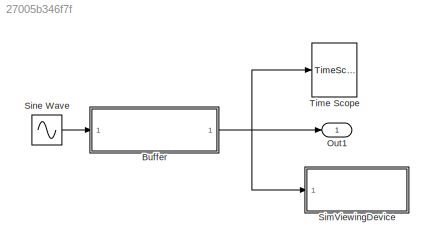
MODEL slx_27005b346f7f
KIND model
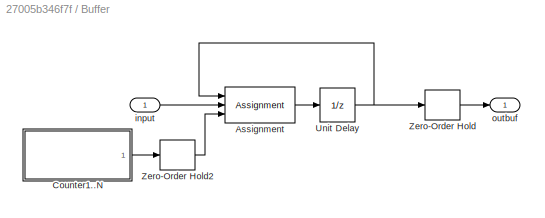
BLOCK [SubSystem] Buffer
  FunctionWithSeparateData = off
  MaskHideContents = off
  MinAlgLoopOccurrences = off
  Opaque = off
  Ports = [1, 1]
  PropExecContextOutsideSubsystem = off
  RTWSystemCode = Auto
  RequestExecContextInheritance = off
  TreatAsAtomicUnit = on
  Variant = off
BLOCK [Assignment] Buffer/Assignment
  IndexOptions = Index vector (port)
  Indices = 1
  OutputSizes = 100
  Ports = [3, 1]
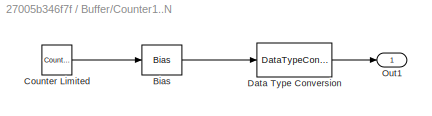
BLOCK [SubSystem] Buffer/Counter1..N
  FunctionWithSeparateData = off
  MaskHideContents = off
  MinAlgLoopOccurrences = off
  Opaque = off
  Ports = [0, 1]
  PropExecContextOutsideSubsystem = off
  RTWSystemCode = Auto
  RequestExecContextInheritance = off
  Variant = off
BLOCK [Bias] Buffer/Counter1..N/Bias
  Bias = 1
  SaturateOnIntegerOverflow = off
BLOCK [Reference] Buffer/Counter1..N/Counter Limited  REF=simulink/Sources/Counter
Limited
  Ports = [0, 1]
  SourceBlock = simulink/Sources/Counter\nLimited
  SourceType = Counter Limited
  tsamp = -1
  uplimit = BufSize-1
BLOCK [DataTypeConversion] Buffer/Counter1..N/Data Type Conversion
  RndMeth = Floor
  SaturateOnIntegerOverflow = off
BLOCK [Outport] Buffer/Counter1..N/Out1
  IconDisplay = Port number
BLOCK [UnitDelay] Buffer/Unit Delay
  InitialCondition = zeros(BufSize,1)
  InputProcessing = Elements as channels (sample based)
  SampleTime = Ts
BLOCK [ZeroOrderHold] Buffer/Zero-Order Hold
  SampleTime = BufSize*Ts
BLOCK [ZeroOrderHold] Buffer/Zero-Order Hold2
  SampleTime = Ts
BLOCK [Inport] Buffer/input
  IconDisplay = Port number
  SampleTime = Ts
BLOCK [Outport] Buffer/outbuf
  IconDisplay = Port number
BLOCK [Outport] Out1
  IconDisplay = Port number
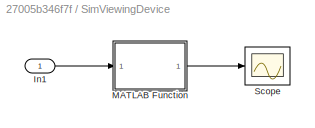
BLOCK [SubSystem] SimViewingDevice
  FunctionWithSeparateData = off
  MaskHideContents = off
  MinAlgLoopOccurrences = off
  Opaque = off
  Ports = [1]
  PropExecContextOutsideSubsystem = off
  RTWSystemCode = Auto
  RequestExecContextInheritance = off
  SimViewingDevice = on
  TreatAsAtomicUnit = on
  Variant = off
BLOCK [Inport] SimViewingDevice/In1
  IconDisplay = Port number
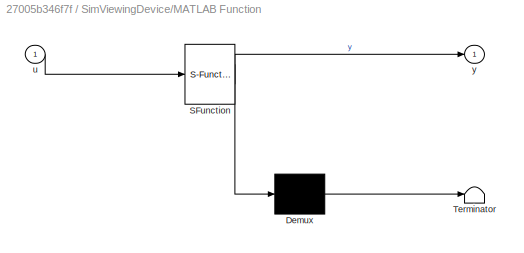
BLOCK [SubSystem] SimViewingDevice/MATLAB Function
  ErrorFcn = Stateflow.Translate.translate
  FunctionWithSeparateData = off
  MaskHideContents = off
  MinAlgLoopOccurrences = off
  Opaque = off
  PermitHierarchicalResolution = ParametersOnly
  Ports = [1, 1]
  PropExecContextOutsideSubsystem = off
  RTWSystemCode = Auto
  RequestExecContextInheritance = off
  SFBlockType = MATLAB Function
  TreatAsAtomicUnit = on
  Variant = off
BLOCK [Demux] SimViewingDevice/MATLAB Function/ Demux 
  Outputs = 1
  Ports = [1, 1]
BLOCK [S-Function] SimViewingDevice/MATLAB Function/ SFunction 
  EnableBusSupport = off
  FunctionName = sf_sfun
  PortCounts = [1 2]
  Ports = [1, 2]
  SFunctionDeploymentMode = off
  Tag = Stateflow S-Function mdaqdemo_extbuf_2013 2
BLOCK [Terminator] SimViewingDevice/MATLAB Function/ Terminator 
BLOCK [Inport] SimViewingDevice/MATLAB Function/u
  IconDisplay = Port number
BLOCK [Outport] SimViewingDevice/MATLAB Function/y
  IconDisplay = Port number
BLOCK [Scope] SimViewingDevice/Scope
  DataFormat = StructureWithTime
  Decimation = 1
  Grid = on
  LimitDataPoints = off
  MaxDataPoints = 10000
  NumInputPorts = 1
  Ports = [1]
  SampleInput = off
  SampleTime = -1
  SaveName = ScopeData
  SaveToWorkspace = off
  ShowLegends = off
  TickLabels = OneTimeTick
  TimeRange = auto
  YMax = 1
  YMin = -1
  ZoomMode = on
BLOCK [Sin] Sine Wave
  Ports = [0, 1]
BLOCK [TimeScope] Time Scope
  CopyFcn = scopeextensions.ScopeBlock.callback(gcbh, 'onBlockCopy', gcbh);
  DefaultConfigurationName = spbscopes.TimeScopeBlockCfg
  NumInputPorts = 1
  Ports = [1]
  UserDataPersistent = on
LINE Buffer/Assignment:1 -> Buffer/Unit Delay:1
LINE Buffer/Counter1..N/Bias:1 -> Buffer/Counter1..N/Data Type Conversion:1
LINE Buffer/Counter1..N/Counter Limited:1 -> Buffer/Counter1..N/Bias:1
LINE Buffer/Counter1..N/Data Type Conversion:1 -> Buffer/Counter1..N/Out1:1
LINE Buffer/Counter1..N:1 -> Buffer/Zero-Order Hold2:1
NET Buffer/Unit Delay:1 -> Buffer/Assignment:1, Buffer/Zero-Order Hold:1
LINE Buffer/Zero-Order Hold2:1 -> Buffer/Assignment:3
LINE Buffer/Zero-Order Hold:1 -> Buffer/outbuf:1
LINE Buffer/input:1 -> Buffer/Assignment:2
NET Buffer:1 -> Out1:1, SimViewingDevice:1, Time Scope:1
LINE SimViewingDevice/In1:1 -> SimViewingDevice/MATLAB Function:1
LINE SimViewingDevice/MATLAB Function:1 -> SimViewingDevice/Scope:1
LINE Sine Wave:1 -> Buffer:1
note: NET lines group one-source signal fan-out (src -> all destinations, sorted); 1:1 wires keep LINE
